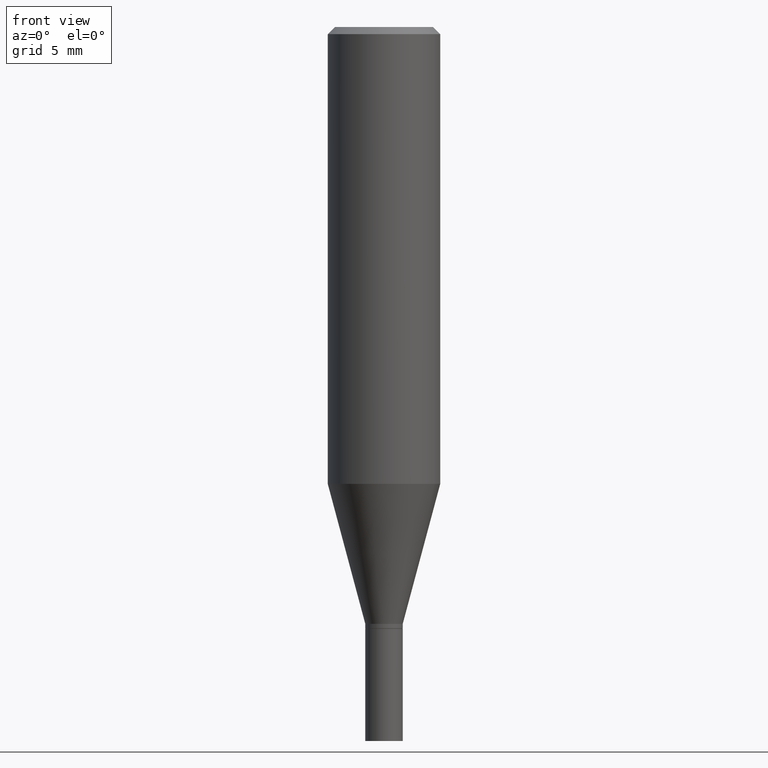
[diagram: clean part render]
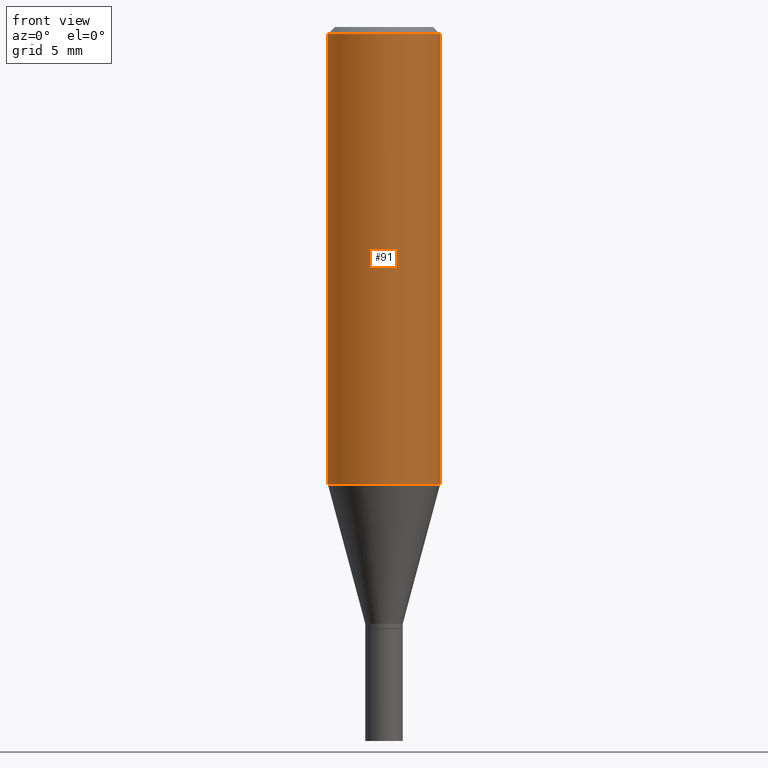
[diagram: same view with one face highlighted and labeled with its STEP entity id]
A machine part, front view. The second image highlights one B-rep face of the part: STEP entity #91.
In plain terms, the highlighted cylindrical surface (partial cylindrical patch) has radius 2.9997 mm, axis along (-0, 0, 1).
Its self-contained STEP definition (entity closure, byte-faithful):
#20 = EDGE_CURVE ( 'NONE', #309, #268, #135, .T. ) ;
#42 = FACE_OUTER_BOUND ( 'NONE', #169, .T. ) ;
#58 = DIRECTION ( 'NONE',  ( 1.000000000000000000, -6.982962677686266711E-15, 0.000000000000000000 ) ) ;
#70 = DIRECTION ( 'NONE',  ( -2.445468806185136877E-29, 3.491481338843145188E-15, 1.000000000000000000 ) ) ;
#91 = ADVANCED_FACE ( 'NONE', ( #42 ), #400, .T. ) ;
#95 = ORIENTED_EDGE ( 'NONE', *, *, #345, .F. ) ;
#105 = CARTESIAN_POINT ( 'NONE',  ( -0.1180999999999999966, 8.391509709326782957E-16, -5.809262341591043784E-30 ) ) ;
#121 = CARTESIAN_POINT ( 'NONE',  ( 3.668203209277705088E-31, -5.237222008264718399E-17, -0.01499999999999999944 ) ) ;
#122 = VECTOR ( 'NONE', #70, 39.37007874015748143 ) ;
#132 = EDGE_CURVE ( 'NONE', #309, #373, #174, .T. ) ;
#134 = CARTESIAN_POINT ( 'NONE',  ( 0.1180999999999999966, -8.770601123173952432E-16, -0.01499999999999999944 ) ) ;
#135 = CIRCLE ( 'NONE', #316, 0.1180999999999999966 ) ;
#169 = EDGE_LOOP ( 'NONE', ( #224, #285, #326, #95 ) ) ;
#174 = LINE ( 'NONE', #105, #252 ) ;
#179 = EDGE_CURVE ( 'NONE', #268, #204, #353, .T. ) ;
#204 = VERTEX_POINT ( 'NONE', #134 ) ;
#211 = CARTESIAN_POINT ( 'NONE',  ( 2.347407949845566514E-29, -3.351476424810041143E-15, -0.9599009989039514190 ) ) ;
#218 = DIRECTION ( 'NONE',  ( 1.000000000000000000, -6.982962677686266711E-15, 4.876176775795936353E-29 ) ) ;
#224 = ORIENTED_EDGE ( 'NONE', *, *, #132, .F. ) ;
#238 = DIRECTION ( 'NONE',  ( -2.445468806185136597E-29, 3.491481338843145583E-15, 1.000000000000000000 ) ) ;
#248 = CARTESIAN_POINT ( 'NONE',  ( 0.1180999999999999966, -8.246878922347480654E-16, 5.758764772215000440E-30 ) ) ;
#252 = VECTOR ( 'NONE', #321, 39.37007874015748143 ) ;
#268 = VERTEX_POINT ( 'NONE', #378 ) ;
#275 = CIRCLE ( 'NONE', #381, 0.1180999999999999966 ) ;
#277 = AXIS2_PLACEMENT_3D ( 'NONE', #360, #385, #218 ) ;
#285 = ORIENTED_EDGE ( 'NONE', *, *, #20, .T. ) ;
#309 = VERTEX_POINT ( 'NONE', #415 ) ;
#312 = DIRECTION ( 'NONE',  ( 1.000000000000000000, -6.982962677686269077E-15, 0.000000000000000000 ) ) ;
#316 = AXIS2_PLACEMENT_3D ( 'NONE', #211, #238, #312 ) ;
#321 = DIRECTION ( 'NONE',  ( -2.445468806185136877E-29, 3.491481338843145188E-15, 1.000000000000000000 ) ) ;
#326 = ORIENTED_EDGE ( 'NONE', *, *, #179, .T. ) ;
#345 = EDGE_CURVE ( 'NONE', #373, #204, #275, .T. ) ;
#353 = LINE ( 'NONE', #248, #122 ) ;
#360 = CARTESIAN_POINT ( 'NONE',  ( 0.000000000000000000, 0.000000000000000000, 0.000000000000000000 ) ) ;
#369 = CARTESIAN_POINT ( 'NONE',  ( -0.1180999999999999966, -8.627733515136660128E-16, -0.01499999999999999944 ) ) ;
#373 = VERTEX_POINT ( 'NONE', #369 ) ;
#378 = CARTESIAN_POINT ( 'NONE',  ( 0.1181000000000000105, -4.176164317044788617E-15, -0.9599009989039514190 ) ) ;
#381 = AXIS2_PLACEMENT_3D ( 'NONE', #121, #453, #58 ) ;
#385 = DIRECTION ( 'NONE',  ( -2.445468806185136597E-29, 3.491481338843145583E-15, 1.000000000000000000 ) ) ;
#400 = CYLINDRICAL_SURFACE ( 'NONE', #277, 0.1180999999999999966 ) ;
#415 = CARTESIAN_POINT ( 'NONE',  ( -0.1181000000000000105, -2.512325453877362157E-15, -0.9599009989039514190 ) ) ;
#453 = DIRECTION ( 'NONE',  ( -2.445468806185136597E-29, 3.491481338843145583E-15, 1.000000000000000000 ) ) ;